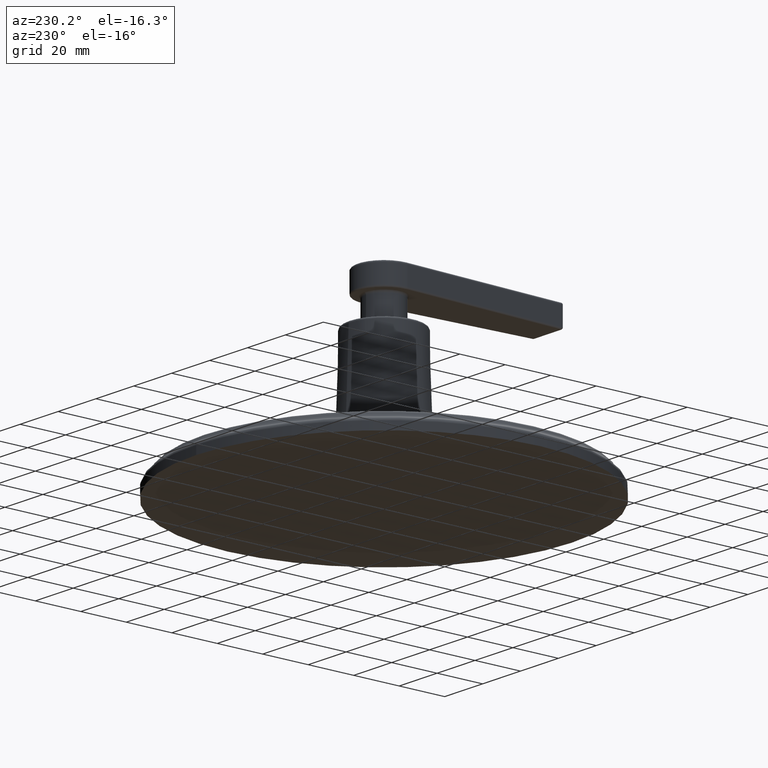
[diagram: clean part render]
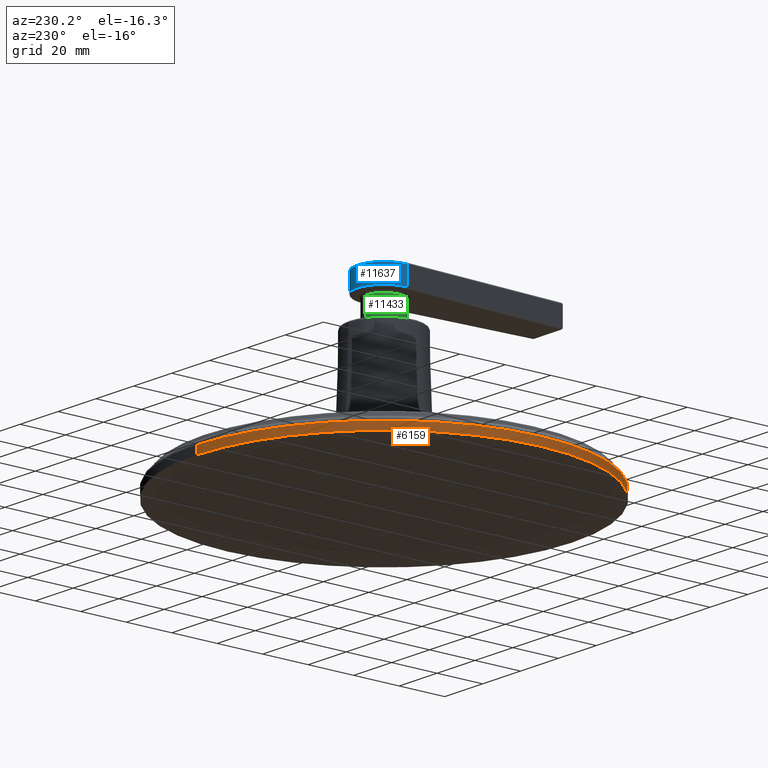
[diagram: same view with three faces highlighted in distinct colors, each labeled with its STEP entity id]
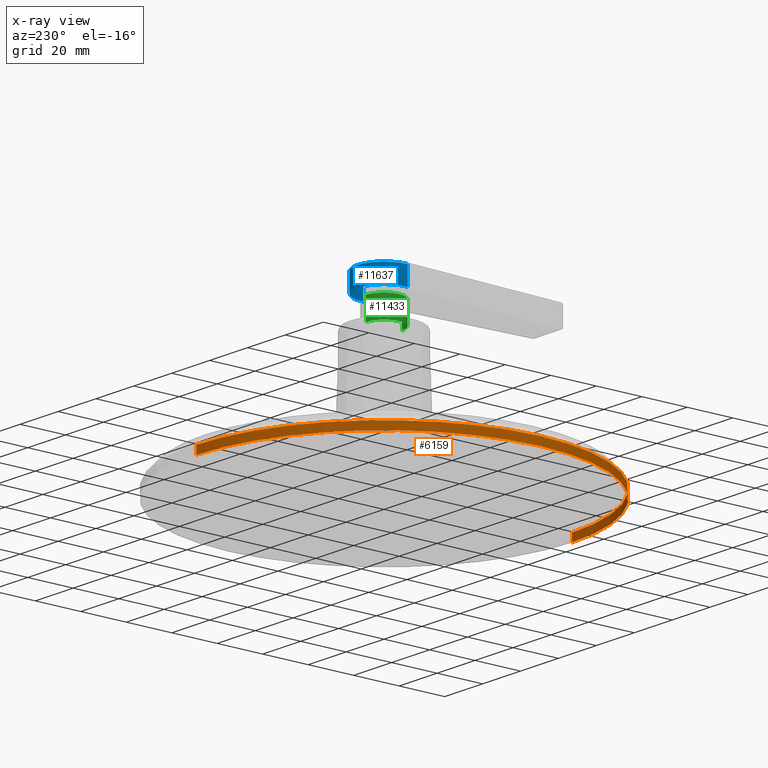
[diagram: x-ray of the same camera — body ghosted, the three highlighted faces saturated]
A machine part, auxiliary view with three faces highlighted in distinct colors.
The next image is the same camera in x-ray (body ghosted, the three faces saturated) — at least one of them is partly hidden behind the body in this view.
Their STEP definitions:

[orange] entity #6159 — the highlighted cylindrical surface (partial cylindrical patch) has radius 82.55 mm, axis along (0, 0, -1).
#964=CARTESIAN_POINT('',(0.E0,0.E0,1.394632603741E-1));
#965=DIRECTION('',(0.E0,0.E0,1.E0));
#966=DIRECTION('',(0.E0,1.E0,0.E0));
#967=AXIS2_PLACEMENT_3D('',#964,#965,#966);
#974=DIRECTION('',(-1.801507517113E-12,0.E0,1.E0));
#975=VECTOR('',#974,1.394632603741E-1);
#976=CARTESIAN_POINT('',(0.E0,-3.25E0,0.E0));
#977=LINE('',#976,#975);
#978=CARTESIAN_POINT('',(0.E0,0.E0,0.E0));
#979=DIRECTION('',(0.E0,0.E0,1.E0));
#980=DIRECTION('',(0.E0,1.E0,0.E0));
#981=AXIS2_PLACEMENT_3D('',#978,#979,#980);
#983=DIRECTION('',(1.800794049264E-12,0.E0,1.E0));
#984=VECTOR('',#983,1.394632603741E-1);
#985=CARTESIAN_POINT('',(0.E0,3.25E0,0.E0));
#986=LINE('',#985,#984);
#4204=CARTESIAN_POINT('',(0.E0,3.25E0,0.E0));
#4205=CARTESIAN_POINT('',(0.E0,-3.25E0,0.E0));
#4206=VERTEX_POINT('',#4204);
#4207=VERTEX_POINT('',#4205);
#5448=CARTESIAN_POINT('',(0.E0,-3.25E0,1.394632603741E-1));
#5449=CARTESIAN_POINT('',(0.E0,3.25E0,1.394632603741E-1));
#5450=VERTEX_POINT('',#5448);
#5451=VERTEX_POINT('',#5449);
#6145=CARTESIAN_POINT('',(0.E0,0.E0,3.2865E-1));
#6146=DIRECTION('',(0.E0,0.E0,-1.E0));
#6147=DIRECTION('',(0.E0,-1.E0,0.E0));
#6148=AXIS2_PLACEMENT_3D('',#6145,#6146,#6147);
#6149=CYLINDRICAL_SURFACE('',#6148,3.25E0);
#6150=ORIENTED_EDGE('',*,*,#6139,.T.);
#6152=ORIENTED_EDGE('',*,*,#6151,.F.);
#6154=ORIENTED_EDGE('',*,*,#6153,.F.);
#6156=ORIENTED_EDGE('',*,*,#6155,.T.);
#6157=EDGE_LOOP('',(#6150,#6152,#6154,#6156));
#6158=FACE_OUTER_BOUND('',#6157,.F.);
#6159=ADVANCED_FACE('',(#6158),#6149,.T.);
#968=CIRCLE('',#967,3.25E0);
#982=CIRCLE('',#981,3.25E0);
#6139=EDGE_CURVE('',#5451,#5450,#968,.T.);
#6151=EDGE_CURVE('',#4207,#5450,#977,.T.);
#6153=EDGE_CURVE('',#4206,#4207,#982,.T.);
#6155=EDGE_CURVE('',#4206,#5451,#986,.T.);

[blue] entity #11637 — the highlighted cylindrical surface (edge-blend (fillet) strip) has radius 11.684 mm, axis along (0, 0, 1).
#4109=CARTESIAN_POINT('',(0.E0,0.E0,2.838E0));
#4110=DIRECTION('',(0.E0,0.E0,-1.E0));
#4111=DIRECTION('',(-9.986245600223E-1,-5.243079362563E-2,0.E0));
#4112=AXIS2_PLACEMENT_3D('',#4109,#4110,#4111);
#4114=DIRECTION('',(0.E0,9.656076643739E-14,-1.E0));
#4115=VECTOR('',#4114,3.15E-1);
#4116=CARTESIAN_POINT('',(4.593672976103E-1,-2.411816506785E-2,3.153E0));
#4117=LINE('',#4116,#4115);
#4118=CARTESIAN_POINT('',(0.E0,0.E0,3.153E0));
#4119=DIRECTION('',(0.E0,0.E0,1.E0));
#4120=DIRECTION('',(9.986245600223E-1,-5.243079362563E-2,0.E0));
#4121=AXIS2_PLACEMENT_3D('',#4118,#4119,#4120);
#4135=DIRECTION('',(0.E0,-1.440426261513E-13,-1.E0));
#4136=VECTOR('',#4135,3.15E-1);
#4137=CARTESIAN_POINT('',(-4.593672976103E-1,-2.411816506784E-2,3.153E0));
#4138=LINE('',#4137,#4136);
#5508=CARTESIAN_POINT('',(-4.593672976103E-1,-2.411816506784E-2,3.153E0));
#5510=VERTEX_POINT('',#5508);
#5522=CARTESIAN_POINT('',(4.593672976103E-1,-2.411816506785E-2,3.153E0));
#5523=VERTEX_POINT('',#5522);
#5524=CARTESIAN_POINT('',(-4.593672976103E-1,-2.411816506788E-2,2.838E0));
#5525=VERTEX_POINT('',#5524);
#5534=CARTESIAN_POINT('',(4.593672976103E-1,-2.411816506782E-2,2.838E0));
#5535=VERTEX_POINT('',#5534);
#11624=CARTESIAN_POINT('',(0.E0,0.E0,3.183E0));
#11625=DIRECTION('',(0.E0,0.E0,1.E0));
#11626=DIRECTION('',(0.E0,-1.E0,0.E0));
#11627=AXIS2_PLACEMENT_3D('',#11624,#11625,#11626);
#11628=CYLINDRICAL_SURFACE('',#11627,4.6E-1);
#11630=ORIENTED_EDGE('',*,*,#11629,.T.);
#11632=ORIENTED_EDGE('',*,*,#11631,.T.);
#11633=ORIENTED_EDGE('',*,*,#11615,.F.);
#11634=ORIENTED_EDGE('',*,*,#11590,.T.);
#11635=EDGE_LOOP('',(#11630,#11632,#11633,#11634));
#11636=FACE_OUTER_BOUND('',#11635,.F.);
#11637=ADVANCED_FACE('',(#11636),#11628,.T.);
#4113=CIRCLE('',#4112,4.6E-1);
#4122=CIRCLE('',#4121,4.6E-1);
#11590=EDGE_CURVE('',#5523,#5510,#4122,.T.);
#11615=EDGE_CURVE('',#5523,#5535,#4117,.T.);
#11629=EDGE_CURVE('',#5510,#5525,#4138,.T.);
#11631=EDGE_CURVE('',#5525,#5535,#4113,.T.);

[green] entity #11433 — the highlighted cylindrical surface (edge-blend (fillet) strip) has radius 7.9375 mm, axis along (0, 0, -1).
#3975=CARTESIAN_POINT('',(0.E0,0.E0,2.768E0));
#3976=DIRECTION('',(0.E0,0.E0,1.E0));
#3977=DIRECTION('',(0.E0,1.E0,0.E0));
#3978=AXIS2_PLACEMENT_3D('',#3975,#3976,#3977);
#3980=CARTESIAN_POINT('',(0.E0,0.E0,2.391E0));
#3981=DIRECTION('',(0.E0,0.E0,-1.E0));
#3982=DIRECTION('',(0.E0,-1.E0,0.E0));
#3983=AXIS2_PLACEMENT_3D('',#3980,#3981,#3982);
#4000=DIRECTION('',(-3.757023223274E-12,0.E0,1.E0));
#4001=VECTOR('',#4000,3.77E-1);
#4002=CARTESIAN_POINT('',(0.E0,3.125E-1,2.391E0));
#4003=LINE('',#4002,#4001);
#4009=DIRECTION('',(3.756627684633E-12,0.E0,1.E0));
#4010=VECTOR('',#4009,3.77E-1);
#4011=CARTESIAN_POINT('',(0.E0,-3.125E-1,2.391E0));
#4012=LINE('',#4011,#4010);
#5500=CARTESIAN_POINT('',(0.E0,-3.125E-1,2.391E0));
#5501=CARTESIAN_POINT('',(0.E0,3.125E-1,2.391E0));
#5502=VERTEX_POINT('',#5500);
#5503=VERTEX_POINT('',#5501);
#5536=CARTESIAN_POINT('',(0.E0,-3.125E-1,2.768E0));
#5537=CARTESIAN_POINT('',(0.E0,3.125E-1,2.768E0));
#5538=VERTEX_POINT('',#5536);
#5539=VERTEX_POINT('',#5537);
#11419=CARTESIAN_POINT('',(0.E0,0.E0,3.2351E0));
#11420=DIRECTION('',(0.E0,0.E0,-1.E0));
#11421=DIRECTION('',(0.E0,1.E0,0.E0));
#11422=AXIS2_PLACEMENT_3D('',#11419,#11420,#11421);
#11423=CYLINDRICAL_SURFACE('',#11422,3.125E-1);
#11425=ORIENTED_EDGE('',*,*,#11424,.T.);
#11427=ORIENTED_EDGE('',*,*,#11426,.F.);
#11428=ORIENTED_EDGE('',*,*,#11408,.T.);
#11430=ORIENTED_EDGE('',*,*,#11429,.T.);
#11431=EDGE_LOOP('',(#11425,#11427,#11428,#11430));
#11432=FACE_OUTER_BOUND('',#11431,.F.);
#11433=ADVANCED_FACE('',(#11432),#11423,.T.);
#3979=CIRCLE('',#3978,3.125E-1);
#3984=CIRCLE('',#3983,3.125E-1);
#11408=EDGE_CURVE('',#5502,#5503,#3984,.T.);
#11424=EDGE_CURVE('',#5539,#5538,#3979,.T.);
#11426=EDGE_CURVE('',#5502,#5538,#4012,.T.);
#11429=EDGE_CURVE('',#5503,#5539,#4003,.T.);